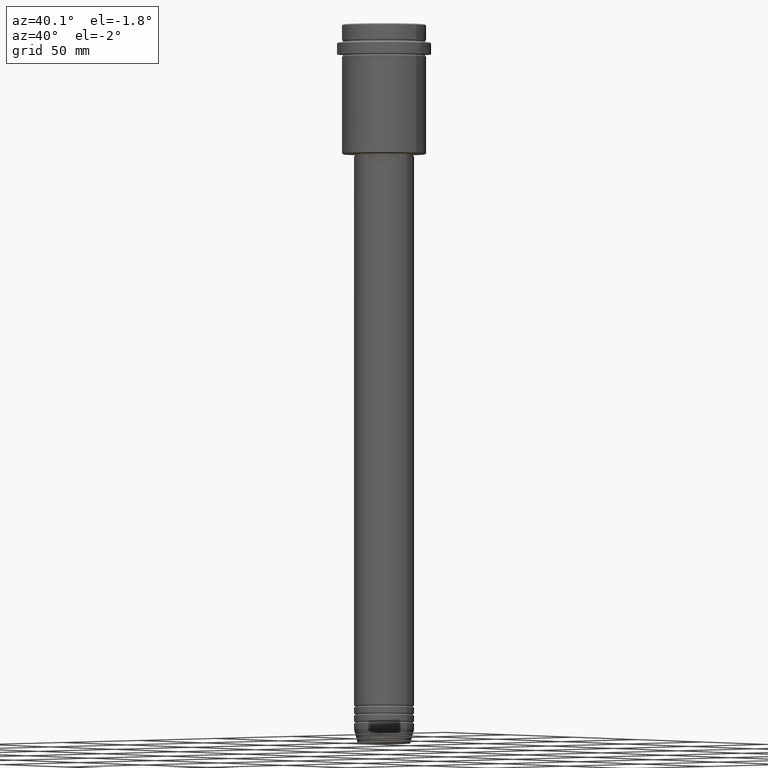
[diagram: clean part render]
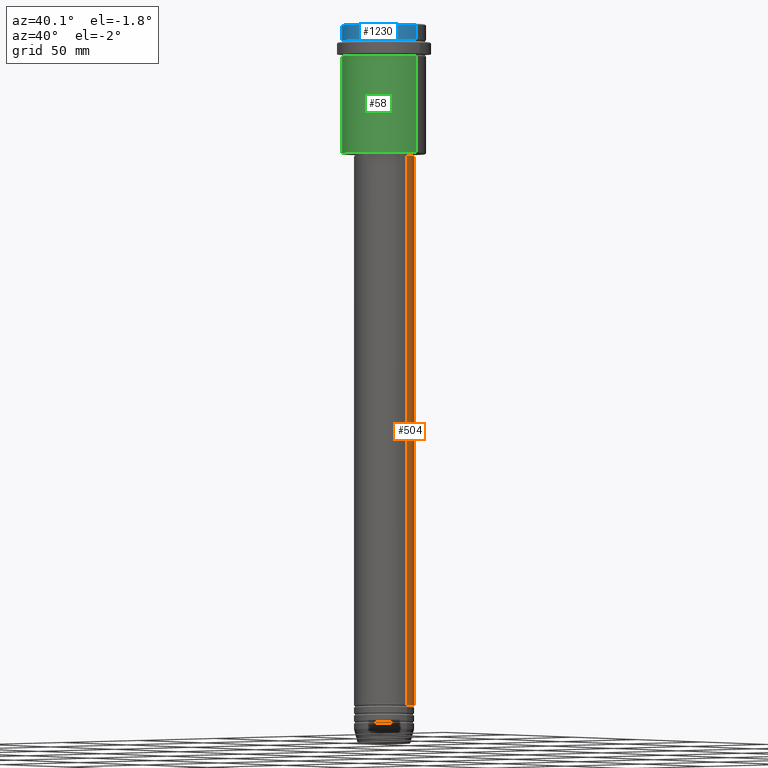
[diagram: same view with three faces highlighted in distinct colors, each labeled with its STEP entity id]
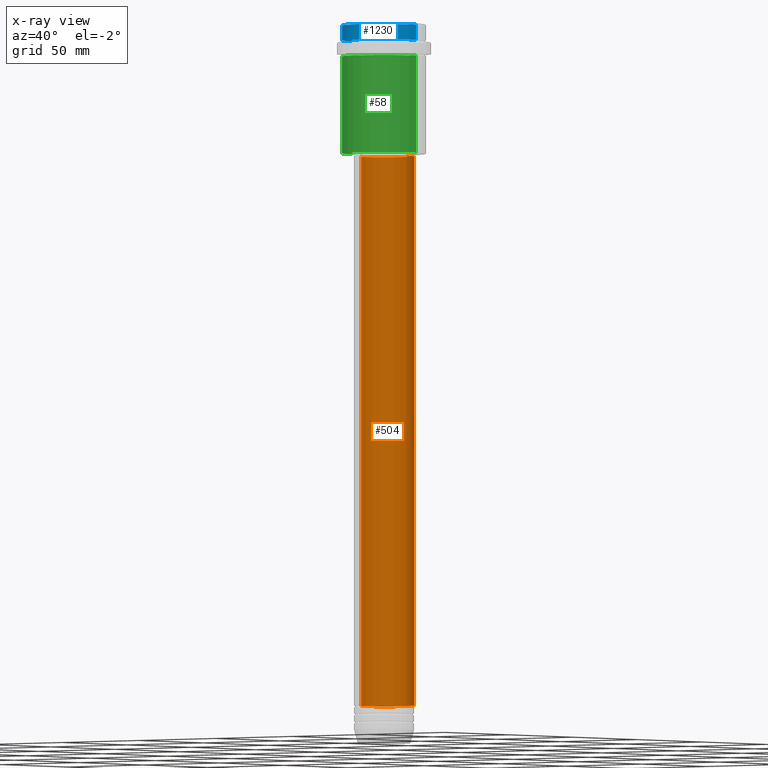
[diagram: x-ray of the same camera — body ghosted, the three highlighted faces saturated]
A machine part, auxiliary view with three faces highlighted in distinct colors.
The next image is the same camera in x-ray (body ghosted, the three faces saturated) — at least one of them is partly hidden behind the body in this view.
Their STEP definitions:

[orange] entity #504 — the highlighted cylindrical surface (edge-blend (fillet) strip) has radius 15 mm, axis along (-0, -0, 1).
#3 = VECTOR ( 'NONE', #300, 1000.000000000000000 ) ;
#71 = VERTEX_POINT ( 'NONE', #631 ) ;
#105 = DIRECTION ( 'NONE',  ( -0.000000000000000000, -0.000000000000000000, 1.000000000000000000 ) ) ;
#110 = CARTESIAN_POINT ( 'NONE',  ( 15.00000000000000000, 0.000000000000000000, 0.000000000000000000 ) ) ;
#201 = AXIS2_PLACEMENT_3D ( 'NONE', #1086, #105, #530 ) ;
#203 = CIRCLE ( 'NONE', #619, 15.00000000000000000 ) ;
#205 = LINE ( 'NONE', #110, #3 ) ;
#208 = CARTESIAN_POINT ( 'NONE',  ( 15.00000000000000000, 0.000000000000000000, -66.00000000000002842 ) ) ;
#300 = DIRECTION ( 'NONE',  ( -0.000000000000000000, -0.000000000000000000, 1.000000000000000000 ) ) ;
#312 = CIRCLE ( 'NONE', #201, 15.00000000000000000 ) ;
#320 = DIRECTION ( 'NONE',  ( 1.000000000000000000, 0.000000000000000000, 0.000000000000000000 ) ) ;
#444 = CARTESIAN_POINT ( 'NONE',  ( 0.000000000000000000, 0.000000000000000000, 0.000000000000000000 ) ) ;
#484 = CARTESIAN_POINT ( 'NONE',  ( 0.000000000000000000, 0.000000000000000000, -66.00000000000002842 ) ) ;
#486 = VERTEX_POINT ( 'NONE', #558 ) ;
#504 = ADVANCED_FACE ( 'NONE', ( #946 ), #670, .T. ) ;
#521 = VECTOR ( 'NONE', #1145, 1000.000000000000000 ) ;
#530 = DIRECTION ( 'NONE',  ( 1.000000000000000000, 0.000000000000000000, 0.000000000000000000 ) ) ;
#558 = CARTESIAN_POINT ( 'NONE',  ( -15.00000000000000000, 1.836970198721029589E-15, -66.00000000000002842 ) ) ;
#576 = ORIENTED_EDGE ( 'NONE', *, *, #858, .T. ) ;
#619 = AXIS2_PLACEMENT_3D ( 'NONE', #484, #856, #320 ) ;
#631 = CARTESIAN_POINT ( 'NONE',  ( -15.00000000000000000, 1.836970198721029589E-15, -340.9999999999998863 ) ) ;
#670 = CYLINDRICAL_SURFACE ( 'NONE', #1182, 15.00000000000000000 ) ;
#712 = CARTESIAN_POINT ( 'NONE',  ( -15.00000000000000000, 1.836970198721029589E-15, 0.000000000000000000 ) ) ;
#730 = VERTEX_POINT ( 'NONE', #1058 ) ;
#787 = EDGE_LOOP ( 'NONE', ( #576, #1357, #1219, #806 ) ) ;
#806 = ORIENTED_EDGE ( 'NONE', *, *, #1367, .F. ) ;
#856 = DIRECTION ( 'NONE',  ( -0.000000000000000000, -0.000000000000000000, 1.000000000000000000 ) ) ;
#858 = EDGE_CURVE ( 'NONE', #730, #71, #312, .T. ) ;
#886 = DIRECTION ( 'NONE',  ( -0.000000000000000000, -0.000000000000000000, 1.000000000000000000 ) ) ;
#946 = FACE_OUTER_BOUND ( 'NONE', #787, .T. ) ;
#967 = VERTEX_POINT ( 'NONE', #208 ) ;
#1058 = CARTESIAN_POINT ( 'NONE',  ( 15.00000000000000000, 0.000000000000000000, -340.9999999999998863 ) ) ;
#1086 = CARTESIAN_POINT ( 'NONE',  ( 0.000000000000000000, 0.000000000000000000, -340.9999999999998863 ) ) ;
#1145 = DIRECTION ( 'NONE',  ( -0.000000000000000000, -0.000000000000000000, 1.000000000000000000 ) ) ;
#1172 = LINE ( 'NONE', #712, #521 ) ;
#1182 = AXIS2_PLACEMENT_3D ( 'NONE', #444, #886, #1387 ) ;
#1219 = ORIENTED_EDGE ( 'NONE', *, *, #1298, .F. ) ;
#1251 = EDGE_CURVE ( 'NONE', #71, #486, #1172, .T. ) ;
#1298 = EDGE_CURVE ( 'NONE', #967, #486, #203, .T. ) ;
#1357 = ORIENTED_EDGE ( 'NONE', *, *, #1251, .T. ) ;
#1367 = EDGE_CURVE ( 'NONE', #730, #967, #205, .T. ) ;
#1387 = DIRECTION ( 'NONE',  ( 1.000000000000000000, 0.000000000000000000, 0.000000000000000000 ) ) ;

[blue] entity #1230 — the highlighted cylindrical surface (partial cylindrical patch) has radius 21 mm, axis along (-0, -0, 1).
#8 = EDGE_CURVE ( 'NONE', #621, #305, #1408, .T. ) ;
#65 = CARTESIAN_POINT ( 'NONE',  ( 0.000000000000000000, 0.000000000000000000, 0.000000000000000000 ) ) ;
#86 = CYLINDRICAL_SURFACE ( 'NONE', #981, 21.00000000000000000 ) ;
#95 = AXIS2_PLACEMENT_3D ( 'NONE', #1128, #698, #1020 ) ;
#118 = CARTESIAN_POINT ( 'NONE',  ( -21.00000000000000000, 2.571758278209441661E-15, 0.000000000000000000 ) ) ;
#138 = CARTESIAN_POINT ( 'NONE',  ( -21.00000000000000000, 2.571758278209441661E-15, -7.999999999999998224 ) ) ;
#194 = EDGE_CURVE ( 'NONE', #963, #305, #772, .T. ) ;
#241 = CARTESIAN_POINT ( 'NONE',  ( 0.000000000000000000, 0.000000000000000000, -0.4999999999999276135 ) ) ;
#279 = CARTESIAN_POINT ( 'NONE',  ( -21.00000000000000000, 2.571758278209441661E-15, -0.4999999999999276135 ) ) ;
#287 = CARTESIAN_POINT ( 'NONE',  ( 21.00000000000000000, 0.000000000000000000, 0.000000000000000000 ) ) ;
#305 = VERTEX_POINT ( 'NONE', #279 ) ;
#359 = VECTOR ( 'NONE', #490, 1000.000000000000000 ) ;
#387 = ORIENTED_EDGE ( 'NONE', *, *, #194, .T. ) ;
#389 = LINE ( 'NONE', #287, #359 ) ;
#490 = DIRECTION ( 'NONE',  ( -0.000000000000000000, -0.000000000000000000, 1.000000000000000000 ) ) ;
#525 = CARTESIAN_POINT ( 'NONE',  ( 21.00000000000000000, 0.000000000000000000, -0.4999999999999276135 ) ) ;
#540 = AXIS2_PLACEMENT_3D ( 'NONE', #241, #1246, #1346 ) ;
#578 = EDGE_LOOP ( 'NONE', ( #770, #947, #599, #387 ) ) ;
#599 = ORIENTED_EDGE ( 'NONE', *, *, #758, .T. ) ;
#621 = VERTEX_POINT ( 'NONE', #138 ) ;
#654 = EDGE_CURVE ( 'NONE', #621, #785, #1005, .T. ) ;
#698 = DIRECTION ( 'NONE',  ( -0.000000000000000000, -0.000000000000000000, 1.000000000000000000 ) ) ;
#758 = EDGE_CURVE ( 'NONE', #785, #963, #389, .T. ) ;
#770 = ORIENTED_EDGE ( 'NONE', *, *, #8, .F. ) ;
#772 = CIRCLE ( 'NONE', #540, 21.00000000000000000 ) ;
#785 = VERTEX_POINT ( 'NONE', #1382 ) ;
#842 = DIRECTION ( 'NONE',  ( -0.000000000000000000, -0.000000000000000000, 1.000000000000000000 ) ) ;
#944 = FACE_OUTER_BOUND ( 'NONE', #578, .T. ) ;
#947 = ORIENTED_EDGE ( 'NONE', *, *, #654, .T. ) ;
#963 = VERTEX_POINT ( 'NONE', #525 ) ;
#981 = AXIS2_PLACEMENT_3D ( 'NONE', #65, #1150, #1052 ) ;
#1005 = CIRCLE ( 'NONE', #95, 21.00000000000000000 ) ;
#1020 = DIRECTION ( 'NONE',  ( 1.000000000000000000, 0.000000000000000000, 0.000000000000000000 ) ) ;
#1052 = DIRECTION ( 'NONE',  ( 1.000000000000000000, 0.000000000000000000, 0.000000000000000000 ) ) ;
#1090 = VECTOR ( 'NONE', #842, 1000.000000000000000 ) ;
#1128 = CARTESIAN_POINT ( 'NONE',  ( 0.000000000000000000, 0.000000000000000000, -7.999999999999998224 ) ) ;
#1150 = DIRECTION ( 'NONE',  ( -0.000000000000000000, -0.000000000000000000, 1.000000000000000000 ) ) ;
#1230 = ADVANCED_FACE ( 'NONE', ( #944 ), #86, .T. ) ;
#1246 = DIRECTION ( 'NONE',  ( 0.000000000000000000, 0.000000000000000000, -1.000000000000000000 ) ) ;
#1346 = DIRECTION ( 'NONE',  ( 1.000000000000000000, 0.000000000000000000, 0.000000000000000000 ) ) ;
#1382 = CARTESIAN_POINT ( 'NONE',  ( 21.00000000000000000, 0.000000000000000000, -7.999999999999998224 ) ) ;
#1408 = LINE ( 'NONE', #118, #1090 ) ;

[green] entity #58 — the highlighted cylindrical surface (partial cylindrical patch) has radius 21 mm, axis along (-0, -0, 1).
#13 = VERTEX_POINT ( 'NONE', #97 ) ;
#58 = ADVANCED_FACE ( 'NONE', ( #315 ), #742, .T. ) ;
#72 = DIRECTION ( 'NONE',  ( -1.000000000000000000, 0.000000000000000000, 0.000000000000000000 ) ) ;
#80 = VERTEX_POINT ( 'NONE', #522 ) ;
#96 = VECTOR ( 'NONE', #781, 1000.000000000000000 ) ;
#97 = CARTESIAN_POINT ( 'NONE',  ( -21.00000000000000000, 2.571758278209441661E-15, -16.00000000000000355 ) ) ;
#114 = DIRECTION ( 'NONE',  ( -0.000000000000000000, -0.000000000000000000, 1.000000000000000000 ) ) ;
#149 = VERTEX_POINT ( 'NONE', #786 ) ;
#155 = CARTESIAN_POINT ( 'NONE',  ( 0.000000000000000000, 0.000000000000000000, -16.00000000000000355 ) ) ;
#160 = ORIENTED_EDGE ( 'NONE', *, *, #485, .T. ) ;
#179 = ORIENTED_EDGE ( 'NONE', *, *, #1105, .F. ) ;
#196 = CARTESIAN_POINT ( 'NONE',  ( -21.00000000000000000, 2.571758278209441661E-15, -64.50000000000000000 ) ) ;
#273 = EDGE_LOOP ( 'NONE', ( #179, #551, #160, #475 ) ) ;
#294 = CARTESIAN_POINT ( 'NONE',  ( 0.000000000000000000, 0.000000000000000000, -64.50000000000000000 ) ) ;
#315 = FACE_OUTER_BOUND ( 'NONE', #273, .T. ) ;
#331 = VECTOR ( 'NONE', #114, 1000.000000000000000 ) ;
#475 = ORIENTED_EDGE ( 'NONE', *, *, #1007, .F. ) ;
#485 = EDGE_CURVE ( 'NONE', #149, #80, #1055, .T. ) ;
#520 = CIRCLE ( 'NONE', #1395, 21.00000000000000000 ) ;
#522 = CARTESIAN_POINT ( 'NONE',  ( 21.00000000000000000, 0.000000000000000000, -16.00000000000000355 ) ) ;
#551 = ORIENTED_EDGE ( 'NONE', *, *, #1266, .T. ) ;
#563 = DIRECTION ( 'NONE',  ( -0.000000000000000000, -0.000000000000000000, 1.000000000000000000 ) ) ;
#606 = DIRECTION ( 'NONE',  ( -0.000000000000000000, -0.000000000000000000, 1.000000000000000000 ) ) ;
#659 = AXIS2_PLACEMENT_3D ( 'NONE', #757, #1171, #834 ) ;
#742 = CYLINDRICAL_SURFACE ( 'NONE', #659, 21.00000000000000000 ) ;
#757 = CARTESIAN_POINT ( 'NONE',  ( 0.000000000000000000, 0.000000000000000000, 0.000000000000000000 ) ) ;
#781 = DIRECTION ( 'NONE',  ( -0.000000000000000000, -0.000000000000000000, 1.000000000000000000 ) ) ;
#786 = CARTESIAN_POINT ( 'NONE',  ( 21.00000000000000000, 0.000000000000000000, -64.50000000000000000 ) ) ;
#801 = CARTESIAN_POINT ( 'NONE',  ( -21.00000000000000000, 2.571758278209441661E-15, 0.000000000000000000 ) ) ;
#807 = DIRECTION ( 'NONE',  ( 1.000000000000000000, 0.000000000000000000, 0.000000000000000000 ) ) ;
#834 = DIRECTION ( 'NONE',  ( 1.000000000000000000, 0.000000000000000000, 0.000000000000000000 ) ) ;
#1002 = LINE ( 'NONE', #801, #96 ) ;
#1007 = EDGE_CURVE ( 'NONE', #13, #80, #520, .T. ) ;
#1055 = LINE ( 'NONE', #1087, #331 ) ;
#1087 = CARTESIAN_POINT ( 'NONE',  ( 21.00000000000000000, 0.000000000000000000, 0.000000000000000000 ) ) ;
#1105 = EDGE_CURVE ( 'NONE', #1300, #13, #1002, .T. ) ;
#1143 = CIRCLE ( 'NONE', #1245, 21.00000000000000000 ) ;
#1171 = DIRECTION ( 'NONE',  ( -0.000000000000000000, -0.000000000000000000, 1.000000000000000000 ) ) ;
#1245 = AXIS2_PLACEMENT_3D ( 'NONE', #294, #606, #72 ) ;
#1266 = EDGE_CURVE ( 'NONE', #1300, #149, #1143, .T. ) ;
#1300 = VERTEX_POINT ( 'NONE', #196 ) ;
#1395 = AXIS2_PLACEMENT_3D ( 'NONE', #155, #563, #807 ) ;